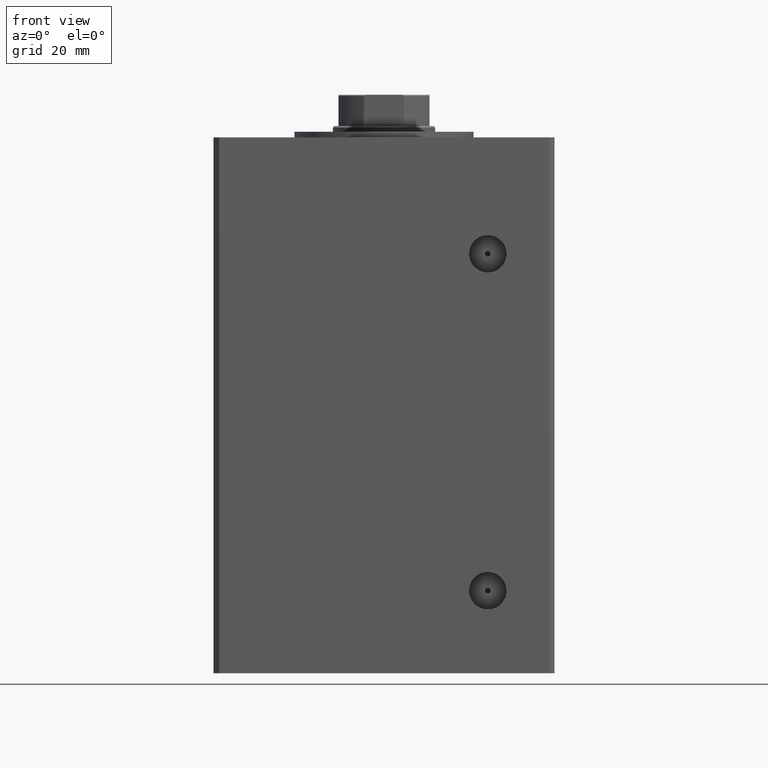
[diagram: clean part render]
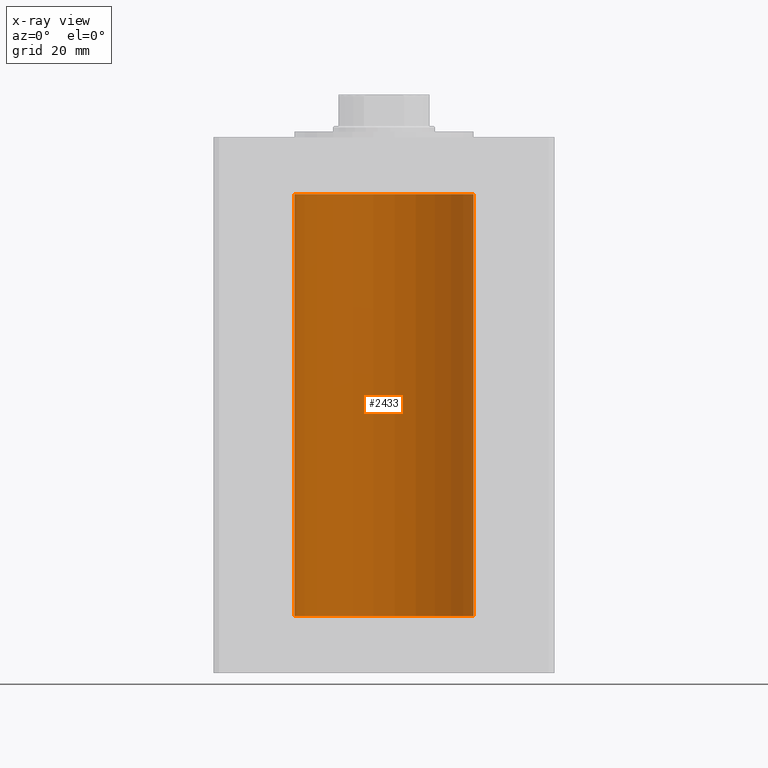
[diagram: x-ray — body ghosted, one internal face saturated and labeled with its STEP entity id]
A machine part, front view, then the same camera in x-ray: the body is ghosted and one INTERNAL B-rep face — a face not visible from any outside direction — is saturated and labeled: STEP entity #2433.
In plain terms, the highlighted cylindrical surface (partial cylindrical patch) has radius 31.5 mm, axis along (-0, -0, -1).
Its self-contained STEP definition (entity closure, byte-faithful):
#645 = AXIS2_PLACEMENT_3D ( 'NONE', #14615, #22512, #25685 ) ;
#2433 = ADVANCED_FACE ( 'NONE', ( #15860 ), #12425, .F. ) ;
#2899 = CARTESIAN_POINT ( 'NONE',  ( 31.50000000000000000, 3.857637417314162689E-15, 148.5000000000000000 ) ) ;
#3074 = ORIENTED_EDGE ( 'NONE', *, *, #6680, .F. ) ;
#3730 = CARTESIAN_POINT ( 'NONE',  ( -31.50000000000000000, 0.000000000000000000, 148.5000000000000000 ) ) ;
#6680 = EDGE_CURVE ( 'NONE', #51901, #19445, #12019, .T. ) ;
#7266 = EDGE_CURVE ( 'NONE', #43716, #51901, #27135, .T. ) ;
#8726 = LINE ( 'NONE', #25584, #33133 ) ;
#9916 = ORIENTED_EDGE ( 'NONE', *, *, #14583, .T. ) ;
#11872 = DIRECTION ( 'NONE',  ( 1.000000000000000000, 0.000000000000000000, 0.000000000000000000 ) ) ;
#12019 = CIRCLE ( 'NONE', #39809, 31.50000000000000000 ) ;
#12425 = CYLINDRICAL_SURFACE ( 'NONE', #29614, 31.50000000000000000 ) ;
#14583 = EDGE_CURVE ( 'NONE', #24427, #19445, #8726, .T. ) ;
#14615 = CARTESIAN_POINT ( 'NONE',  ( 0.000000000000000000, 0.000000000000000000, 148.5000000000000000 ) ) ;
#15860 = FACE_OUTER_BOUND ( 'NONE', #24498, .T. ) ;
#19445 = VERTEX_POINT ( 'NONE', #24227 ) ;
#19804 = ORIENTED_EDGE ( 'NONE', *, *, #7266, .F. ) ;
#22512 = DIRECTION ( 'NONE',  ( -0.000000000000000000, 0.000000000000000000, 1.000000000000000000 ) ) ;
#24227 = CARTESIAN_POINT ( 'NONE',  ( -31.50000000000000000, 0.000000000000000000, 0.000000000000000000 ) ) ;
#24427 = VERTEX_POINT ( 'NONE', #3730 ) ;
#24498 = EDGE_LOOP ( 'NONE', ( #19804, #35765, #9916, #3074 ) ) ;
#25067 = DIRECTION ( 'NONE',  ( -0.000000000000000000, -0.000000000000000000, -1.000000000000000000 ) ) ;
#25584 = CARTESIAN_POINT ( 'NONE',  ( -31.50000000000000000, 0.000000000000000000, 148.5000000000000000 ) ) ;
#25685 = DIRECTION ( 'NONE',  ( 1.000000000000000000, 0.000000000000000000, 0.000000000000000000 ) ) ;
#27135 = LINE ( 'NONE', #31098, #34754 ) ;
#27680 = CARTESIAN_POINT ( 'NONE',  ( 0.000000000000000000, 0.000000000000000000, 0.000000000000000000 ) ) ;
#28496 = CARTESIAN_POINT ( 'NONE',  ( 0.000000000000000000, 0.000000000000000000, 148.5000000000000000 ) ) ;
#29614 = AXIS2_PLACEMENT_3D ( 'NONE', #28496, #35631, #51702 ) ;
#31098 = CARTESIAN_POINT ( 'NONE',  ( 31.50000000000000000, 3.857637417314162689E-15, 148.5000000000000000 ) ) ;
#32388 = EDGE_CURVE ( 'NONE', #43716, #24427, #49489, .T. ) ;
#32981 = CARTESIAN_POINT ( 'NONE',  ( 31.50000000000000000, 3.857637417314162689E-15, 0.000000000000000000 ) ) ;
#33133 = VECTOR ( 'NONE', #25067, 1000.000000000000000 ) ;
#34754 = VECTOR ( 'NONE', #43219, 1000.000000000000000 ) ;
#35631 = DIRECTION ( 'NONE',  ( -0.000000000000000000, -0.000000000000000000, -1.000000000000000000 ) ) ;
#35765 = ORIENTED_EDGE ( 'NONE', *, *, #32388, .T. ) ;
#39809 = AXIS2_PLACEMENT_3D ( 'NONE', #27680, #43758, #11872 ) ;
#43219 = DIRECTION ( 'NONE',  ( -0.000000000000000000, -0.000000000000000000, -1.000000000000000000 ) ) ;
#43716 = VERTEX_POINT ( 'NONE', #2899 ) ;
#43758 = DIRECTION ( 'NONE',  ( -0.000000000000000000, 0.000000000000000000, 1.000000000000000000 ) ) ;
#49489 = CIRCLE ( 'NONE', #645, 31.50000000000000000 ) ;
#51702 = DIRECTION ( 'NONE',  ( -1.000000000000000000, 0.000000000000000000, 0.000000000000000000 ) ) ;
#51901 = VERTEX_POINT ( 'NONE', #32981 ) ;